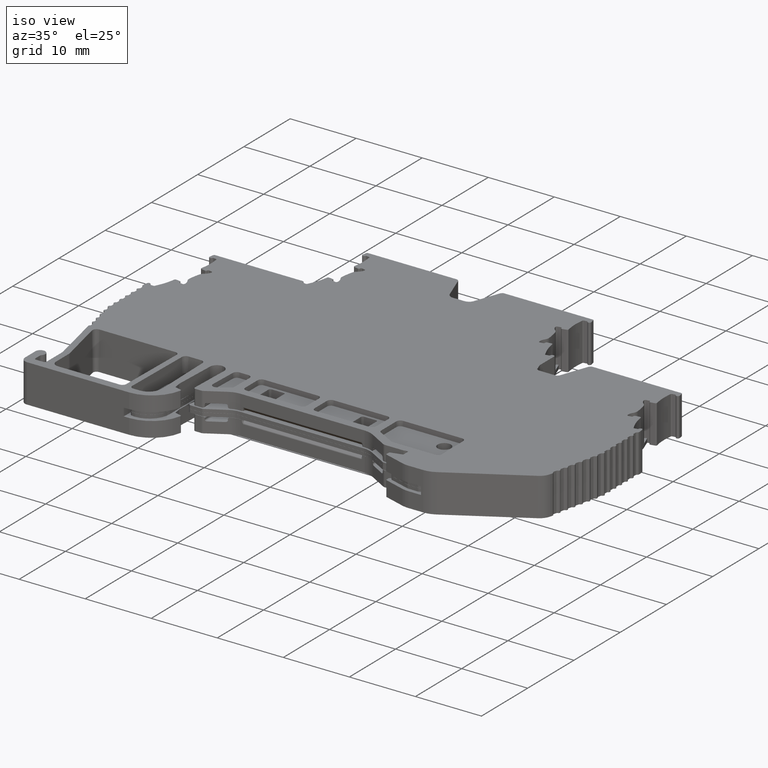
[diagram: clean part render]
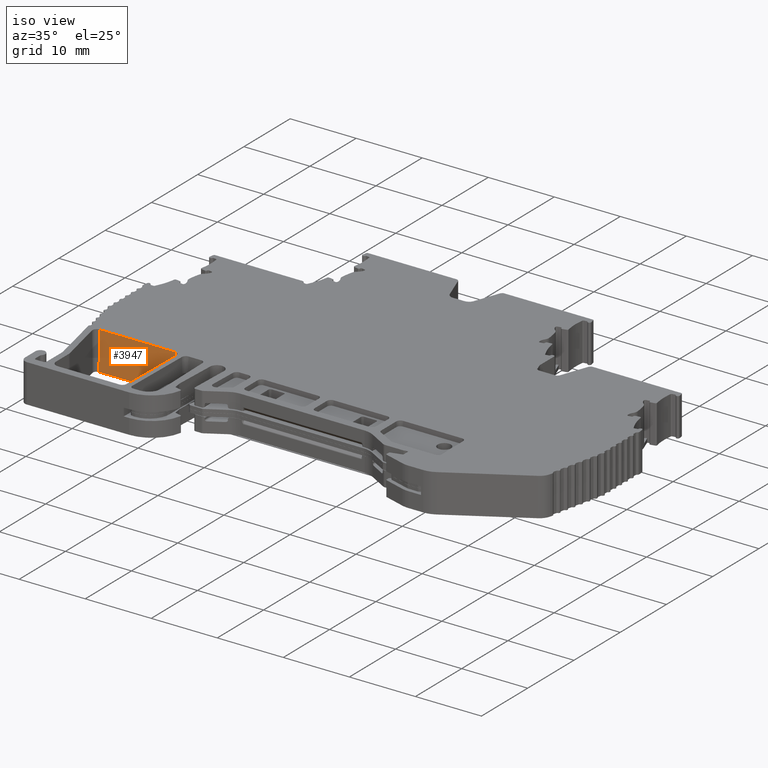
[diagram: same view with one face highlighted and labeled with its STEP entity id]
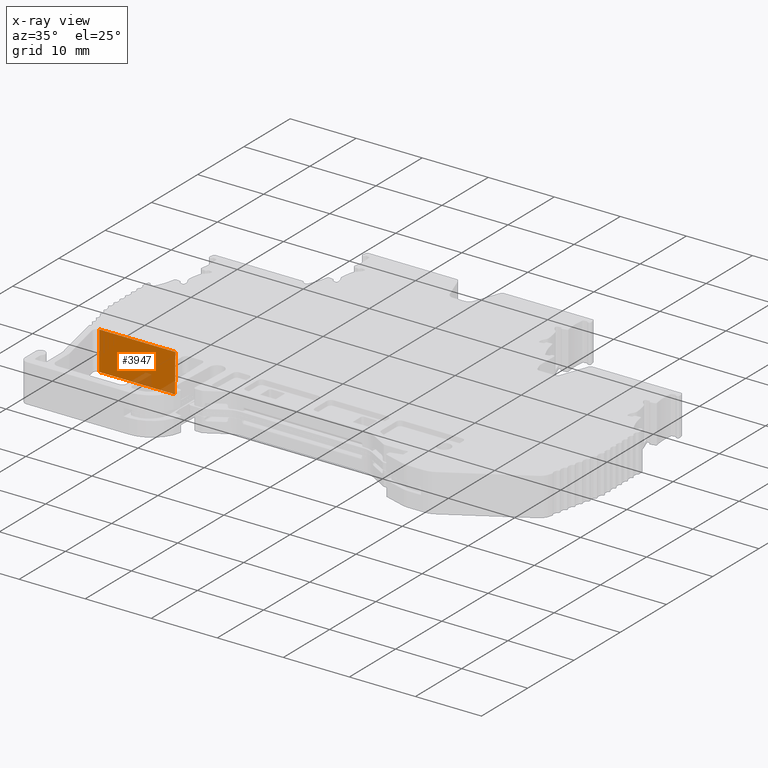
[diagram: x-ray of the same camera — body ghosted, the highlighted face saturated]
A machine part, iso view. The second image highlights one B-rep face of the part: STEP entity #3947.
The next image is the same camera in x-ray: the body ghosted, the highlighted face saturated — about 9% of this face is hidden behind the body in this view.
In plain terms, the highlighted planar face has unit normal (-0, 1, -0.0087).
Its self-contained STEP definition (entity closure, byte-faithful):
#1385 = DIRECTION ( 'NONE',  ( 0.000000000000000000, 0.008726535498373953759, 0.9999619230641713097 ) ) ;
#1461 = VERTEX_POINT ( 'NONE', #26356 ) ;
#2181 = VECTOR ( 'NONE', #5623, 1000.000000000000114 ) ;
#2298 = EDGE_CURVE ( 'NONE', #23097, #12091, #23932, .T. ) ;
#3947 = ADVANCED_FACE ( 'NONE', ( #8071 ), #24805, .F. ) ;
#4267 = ORIENTED_EDGE ( 'NONE', *, *, #12745, .T. ) ;
#5623 = DIRECTION ( 'NONE',  ( -3.785969046716717170E-15, 0.008726535498373952024, 0.9999619230641713097 ) ) ;
#5944 = CARTESIAN_POINT ( 'NONE',  ( 1906.426116333399932, 483.1626022917649834, 2.899999999999999911 ) ) ;
#5953 = LINE ( 'NONE', #29346, #7121 ) ;
#7121 = VECTOR ( 'NONE', #19912, 1000.000000000000000 ) ;
#7733 = CARTESIAN_POINT ( 'NONE',  ( 1894.910490526164949, 483.1626022917599812, 2.899999999999999911 ) ) ;
#8071 = FACE_OUTER_BOUND ( 'NONE', #12768, .T. ) ;
#8123 = LINE ( 'NONE', #5944, #14474 ) ;
#8907 = VECTOR ( 'NONE', #26236, 1000.000000000000114 ) ;
#9278 = CARTESIAN_POINT ( 'NONE',  ( 1906.426116333399932, 483.1626022917649834, 2.899999999999999911 ) ) ;
#10706 = ORIENTED_EDGE ( 'NONE', *, *, #13886, .F. ) ;
#12007 = ORIENTED_EDGE ( 'NONE', *, *, #14247, .F. ) ;
#12091 = VERTEX_POINT ( 'NONE', #9278 ) ;
#12442 = LINE ( 'NONE', #14905, #2181 ) ;
#12471 = DIRECTION ( 'NONE',  ( -1.000000000000000000, -4.338456020057634919E-13, 0.000000000000000000 ) ) ;
#12745 = EDGE_CURVE ( 'NONE', #12091, #21092, #8123, .T. ) ;
#12768 = EDGE_LOOP ( 'NONE', ( #30435, #4267, #12007, #10706 ) ) ;
#13029 = DIRECTION ( 'NONE',  ( -4.338290824946165766E-13, 0.9999619230641713097, -0.008726535498373953759 ) ) ;
#13257 = CARTESIAN_POINT ( 'NONE',  ( 1906.426116333399932, 483.1119864585780306, -2.899999999999999911 ) ) ;
#13886 = EDGE_CURVE ( 'NONE', #23097, #1461, #5953, .T. ) ;
#14247 = EDGE_CURVE ( 'NONE', #1461, #21092, #12442, .T. ) ;
#14474 = VECTOR ( 'NONE', #12471, 1000.000000000000000 ) ;
#14905 = CARTESIAN_POINT ( 'NONE',  ( 1894.910490526164949, 483.1626022917599812, 2.899999999999999911 ) ) ;
#16778 = CARTESIAN_POINT ( 'NONE',  ( 1906.426116333399932, 483.1626022917649834, 2.899999999999999911 ) ) ;
#19912 = DIRECTION ( 'NONE',  ( -1.000000000000000000, -4.338456020057634919E-13, 0.000000000000000000 ) ) ;
#21092 = VERTEX_POINT ( 'NONE', #7733 ) ;
#23097 = VERTEX_POINT ( 'NONE', #13257 ) ;
#23932 = LINE ( 'NONE', #16778, #8907 ) ;
#24653 = CARTESIAN_POINT ( 'NONE',  ( 1906.426116333399932, 483.1626022917649834, 2.899999999999999911 ) ) ;
#24805 = PLANE ( 'NONE',  #30032 ) ;
#26236 = DIRECTION ( 'NONE',  ( 0.000000000000000000, 0.008726535498373952024, 0.9999619230641713097 ) ) ;
#26356 = CARTESIAN_POINT ( 'NONE',  ( 1894.910490526164949, 483.1119864585730284, -2.899999999999999911 ) ) ;
#29346 = CARTESIAN_POINT ( 'NONE',  ( -2.095960106009634808E-10, 483.1119864577510157, -2.899999999999999911 ) ) ;
#30032 = AXIS2_PLACEMENT_3D ( 'NONE', #24653, #13029, #1385 ) ;
#30435 = ORIENTED_EDGE ( 'NONE', *, *, #2298, .T. ) ;